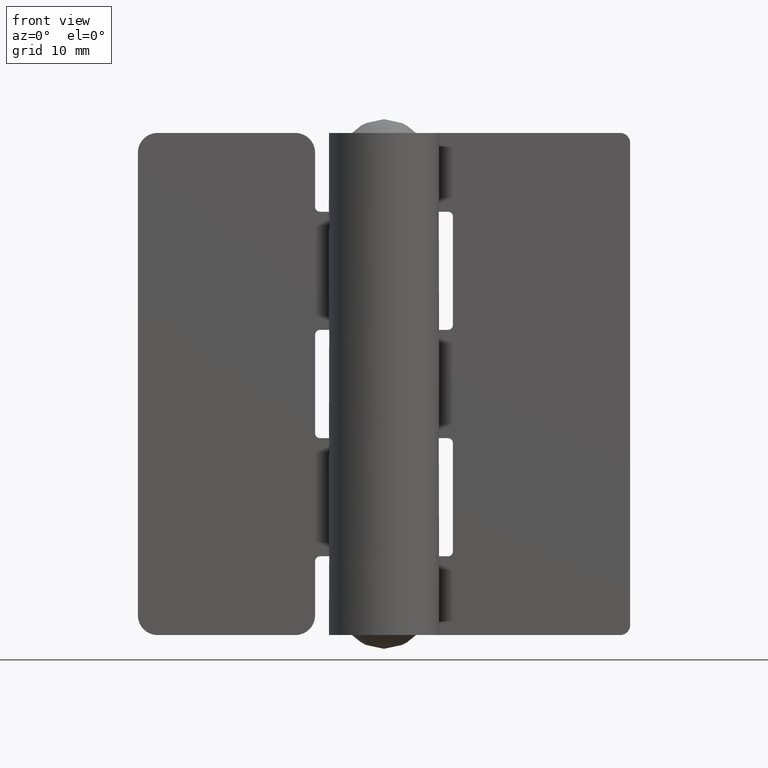
[diagram: clean part render]
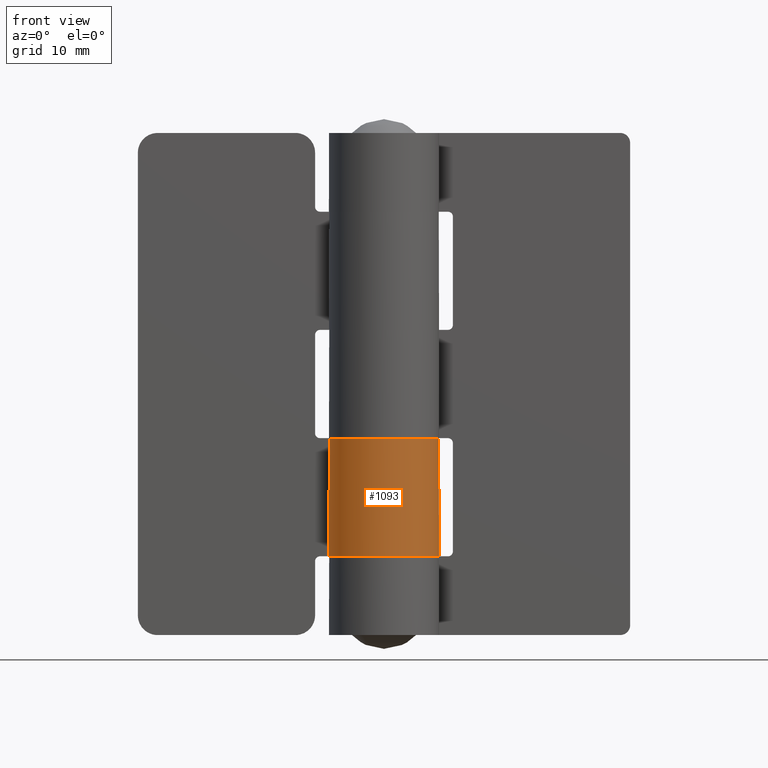
[diagram: same view with one face highlighted and labeled with its STEP entity id]
A machine part, front view. The second image highlights one B-rep face of the part: STEP entity #1093.
In plain terms, the highlighted face is a freeform B-spline surface patch.
Its self-contained STEP definition (entity closure, byte-faithful):
#621=CARTESIAN_POINT('',(0.0,5.599999000000000,20.0));
#622=VERTEX_POINT('',#621);
#673=CARTESIAN_POINT('',(-4.759988939062780,2.949999000000000,20.0));
#674=VERTEX_POINT('',#673);
#680=CARTESIAN_POINT('',(0.0,5.599999000000000,20.0));
#681=CARTESIAN_POINT('',(0.499312187584081,5.600187714743003,20.000000000000039));
#682=CARTESIAN_POINT('',(1.190524074569857,5.506891459092545,19.999999999999950));
#683=CARTESIAN_POINT('',(2.213064798772284,5.169290433948781,20.000000000000028));
#684=CARTESIAN_POINT('',(2.986308612983110,4.773354593073041,20.000000000000082));
#685=CARTESIAN_POINT('',(3.812252247942811,4.141212838566218,19.999999999999929));
#686=CARTESIAN_POINT('',(4.477715516237712,3.416284566733538,19.999999999999659));
#687=CARTESIAN_POINT('',(5.028430281743758,2.532925610768363,20.000000000000231));
#688=CARTESIAN_POINT('',(5.355370994579897,1.708227579224150,19.999999999999790));
#689=CARTESIAN_POINT('',(5.542508625627568,0.902616204627667,20.000000000000298));
#690=CARTESIAN_POINT('',(5.613406231213165,0.193802263884784,19.999999999999879));
#691=CARTESIAN_POINT('',(5.585254328605671,-0.633044039533733,20.000000000000060));
#692=CARTESIAN_POINT('',(5.437742217983351,-1.429124430176660,19.999999999999989));
#693=CARTESIAN_POINT('',(5.144541278378997,-2.264505494827621,20.000000000000011));
#694=CARTESIAN_POINT('',(4.748012313578252,-3.013875202631489,19.999999999999989));
#695=CARTESIAN_POINT('',(4.179749297071977,-3.767391968267427,20.000000000000021));
#696=CARTESIAN_POINT('',(3.519549779016520,-4.388483343310901,20.000000000000011));
#697=CARTESIAN_POINT('',(2.751772896021452,-4.902850156791495,20.0));
#698=CARTESIAN_POINT('',(1.843556974675394,-5.326044492209232,20.0));
#699=CARTESIAN_POINT('',(0.942606422901718,-5.547018566932548,20.000000000000011));
#700=CARTESIAN_POINT('',(-0.016084357869889,-5.619884786808844,19.999999999999979));
#701=CARTESIAN_POINT('',(-0.958907565857189,-5.555634690133299,20.000000000000210));
#702=CARTESIAN_POINT('',(-1.964514823616229,-5.278692566112881,19.999999999999488));
#703=CARTESIAN_POINT('',(-2.899275522052977,-4.822623513956224,20.000000000000188));
#704=CARTESIAN_POINT('',(-3.572445336681201,-4.338333525960937,19.999999999999471));
#705=CARTESIAN_POINT('',(-4.167371482082184,-3.764124564870689,19.999999999998231));
#706=CARTESIAN_POINT('',(-4.660565599487718,-3.147403679083924,20.000000000001620));
#707=CARTESIAN_POINT('',(-5.135190334802826,-2.308991537299744,19.999999999999151));
#708=CARTESIAN_POINT('',(-5.433378070341580,-1.452545310887703,20.000000000000298));
#709=CARTESIAN_POINT('',(-5.591330464500872,-0.562157907802589,19.999999999999918));
#710=CARTESIAN_POINT('',(-5.619964182569015,0.343020058249417,20.000000000000160));
#711=CARTESIAN_POINT('',(-5.497226103122476,1.163581297743021,19.999999999999869));
#712=CARTESIAN_POINT('',(-5.230319178178160,2.066736793268909,20.000000000000220));
#713=CARTESIAN_POINT('',(-4.982622227179238,2.590937044475142,19.999999999996870));
#714=CARTESIAN_POINT('',(-4.759988939062780,2.949999000000000,20.0));
#715=B_SPLINE_CURVE_WITH_KNOTS('',3,(#680,#681,#682,#683,#684,#685,#686,#687,#688,#689,#690,#691,#692,#693,#694,#695,#696,#697,#698,#699,#700,#701,#702,#703,#704,#705,#706,#707,#708,#709,#710,#711,#712,#713,#714),.UNSPECIFIED.,.F.,.U.,(4,1,1,1,1,1,1,1,1,1,1,1,1,1,1,1,1,1,1,1,1,1,1,1,1,1,1,1,1,1,1,1,4),(0.000000119759694,1.497862609559093,2.073965803868283,3.226175939003674,4.090332376966728,5.184933123235918,6.164303618623880,7.201315523144405,7.834988426872759,8.641519705231119,9.332850886344652,10.312239556603689,11.061175700837140,11.982940509869680,12.847100954309040,13.884081672732250,14.690636331765880,15.612379804215919,16.879812220815989,17.455915332829878,18.492902454113409,19.702730064500379,20.566888571862432,21.603861550418451,22.179946664737429,23.044103251506851,23.965864166468709,25.060465247798891,25.751795981026490,26.673561321542319,27.768175390792941,28.229043012991550,29.496464256141781),.UNSPECIFIED.);
#716=EDGE_CURVE('',#622,#674,#715,.T.);
#877=CARTESIAN_POINT('',(0.0,5.599999000000000,8.0));
#878=VERTEX_POINT('',#877);
#884=CARTESIAN_POINT('',(-4.759988939062780,2.949999000000000,8.0));
#885=VERTEX_POINT('',#884);
#886=CARTESIAN_POINT('',(-4.759988939062780,2.949999000000000,8.0));
#887=CARTESIAN_POINT('',(-4.972492123320230,2.607254389446145,8.000000000000011));
#888=CARTESIAN_POINT('',(-5.272823761338738,1.980105288297291,7.999999999999973));
#889=CARTESIAN_POINT('',(-5.506952344828874,1.105660027159584,8.000000000000014));
#890=CARTESIAN_POINT('',(-5.612439097374665,0.285343585623478,8.000000000000027));
#891=CARTESIAN_POINT('',(-5.598765265818063,-0.562729889637604,7.999999999999942));
#892=CARTESIAN_POINT('',(-5.420699495899317,-1.509564062778875,8.000000000000053));
#893=CARTESIAN_POINT('',(-5.118657711847159,-2.322747564638697,7.999999999999973));
#894=CARTESIAN_POINT('',(-4.681316190961790,-3.114246538638991,7.999999999999976));
#895=CARTESIAN_POINT('',(-4.149835871499414,-3.800314203432685,8.000000000000080));
#896=CARTESIAN_POINT('',(-3.496716745426211,-4.398971078907762,7.999999999999995));
#897=CARTESIAN_POINT('',(-2.860427827731439,-4.832326496052886,8.000000000000043));
#898=CARTESIAN_POINT('',(-2.174043619595116,-5.180401883227240,7.999999999999953));
#899=CARTESIAN_POINT('',(-1.299559675272061,-5.480431096290932,8.000000000000139));
#900=CARTESIAN_POINT('',(-0.305725772455670,-5.625839288811138,7.999999999999940));
#901=CARTESIAN_POINT('',(0.637484651931337,-5.583240550922773,8.000000000000005));
#902=CARTESIAN_POINT('',(1.450066684157052,-5.427744008846545,8.000000000000002));
#903=CARTESIAN_POINT('',(2.234123247496936,-5.160985017932416,8.0));
#904=CARTESIAN_POINT('',(2.983187257866678,-4.763914216806866,8.0));
#905=CARTESIAN_POINT('',(3.710593168037769,-4.226200837683432,8.0));
#906=CARTESIAN_POINT('',(4.317702321619465,-3.606039202340385,8.0));
#907=CARTESIAN_POINT('',(4.814113640318336,-2.895949208120165,8.000000000000004));
#908=CARTESIAN_POINT('',(5.242371435150837,-2.055702397897208,7.999999999999977));
#909=CARTESIAN_POINT('',(5.497633704414552,-1.204127962644750,8.000000000000069));
#910=CARTESIAN_POINT('',(5.616474539636037,-0.230388965581934,7.999999999999869));
#911=CARTESIAN_POINT('',(5.590390057758932,0.714244568829204,8.000000000000020));
#912=CARTESIAN_POINT('',(5.363934888259358,1.712033672668250,8.000000000000014));
#913=CARTESIAN_POINT('',(4.933245706735271,2.721884265711610,7.999999999999974));
#914=CARTESIAN_POINT('',(4.327992661523887,3.619109013689253,8.000000000000014));
#915=CARTESIAN_POINT('',(3.563431100330595,4.355110809989276,7.999999999999993));
#916=CARTESIAN_POINT('',(2.878566503072945,4.820265370112688,8.000000000000021));
#917=CARTESIAN_POINT('',(2.176827456486782,5.179596222923674,7.999999999999916));
#918=CARTESIAN_POINT('',(1.248157812905440,5.502226871207489,8.000000000000242));
#919=CARTESIAN_POINT('',(0.460884508474857,5.600126549196624,7.999999999999833));
#920=CARTESIAN_POINT('',(0.0,5.599999000000000,8.0));
#921=B_SPLINE_CURVE_WITH_KNOTS('',3,(#886,#887,#888,#889,#890,#891,#892,#893,#894,#895,#896,#897,#898,#899,#900,#901,#902,#903,#904,#905,#906,#907,#908,#909,#910,#911,#912,#913,#914,#915,#916,#917,#918,#919,#920),.UNSPECIFIED.,.F.,.U.,(4,1,1,1,1,1,1,1,1,1,1,1,1,1,1,1,1,1,1,1,1,1,1,1,1,1,1,1,1,1,1,1,4),(0.000000119753281,1.209813331748350,2.073965803862947,2.707679854001437,3.687059296713187,4.608827415401720,5.588212093036432,6.279544009641828,7.316520333288530,8.180657203051034,8.929575417891734,9.620904982125030,10.485067370652679,11.694889269342230,12.616662033907311,13.307997068106440,14.172154291584519,15.093872656397259,15.842808153371740,16.879812220815069,17.686352539166009,18.435291486558789,19.702730064499750,20.336449026034121,21.373441979267191,22.525604354446031,23.389770136612839,24.657199786274521,25.751795981026170,26.558347901045320,27.134456751429990,28.113839291865201,29.496464256141810),.UNSPECIFIED.);
#922=EDGE_CURVE('',#885,#878,#921,.T.);
#1050=CARTESIAN_POINT('',(-4.759988939062780,2.949999000000000,20.0));
#1051=CARTESIAN_POINT('',(-4.759988939062780,2.949999000000000,8.0));
#1052=QUASI_UNIFORM_CURVE('',1,(#1050,#1051),.UNSPECIFIED.,.F.,.U.);
#1053=EDGE_CURVE('',#674,#885,#1052,.T.);
#1061=CARTESIAN_POINT('',(-4.669759769690318,3.090846565810540,20.300000000000001));
#1062=CARTESIAN_POINT('',(-4.669759769690318,3.090846565810540,7.692499999999999));
#1063=CARTESIAN_POINT('',(-8.532370044657423,-2.744920976828291,20.300000000000011));
#1064=CARTESIAN_POINT('',(-8.532370044657423,-2.744920976828291,7.692499999999999));
#1065=CARTESIAN_POINT('',(-1.991643910512547,-5.233865047335407,20.300000000000001));
#1066=CARTESIAN_POINT('',(-1.991643910512547,-5.233865047335407,7.692499999999999));
#1067=CARTESIAN_POINT('',(4.549082223632328,-7.722809117842525,20.300000000000011));
#1068=CARTESIAN_POINT('',(4.549082223632328,-7.722809117842525,7.692499999999999));
#1069=CARTESIAN_POINT('',(5.543209642829131,-0.795497112280814,20.300000000000001));
#1070=CARTESIAN_POINT('',(5.543209642829131,-0.795497112280814,7.692499999999999));
#1071=CARTESIAN_POINT('',(6.537337062025936,6.131814893280898,20.300000000000011));
#1072=CARTESIAN_POINT('',(6.537337062025936,6.131814893280898,7.692499999999999));
#1073=CARTESIAN_POINT('',(-0.439370857616833,5.582736071988181,20.300000000000001));
#1074=CARTESIAN_POINT('',(-0.439370857616833,5.582736071988181,7.692499999999999));
#1082=(BOUNDED_SURFACE()B_SPLINE_SURFACE(1,2,((#1061,#1063,#1065,#1067,#1069,#1071,#1073),(#1062,#1064,#1066,#1068,#1070,#1072,#1074)),.UNSPECIFIED.,.F.,.F.,.U.)B_SPLINE_SURFACE_WITH_KNOTS((2,2),(3,2,2,3),(0.0,12.607500000000011),(0.0,10.764344354865180,21.528688709730350,32.293033064595527),.UNSPECIFIED.)GEOMETRIC_REPRESENTATION_ITEM()RATIONAL_B_SPLINE_SURFACE(((1.0,0.624788514543960,1.0,0.624788514543960,1.0,0.624788514543960,1.0),(1.0,0.624788514543960,1.0,0.624788514543960,1.0,0.624788514543960,1.0)))REPRESENTATION_ITEM('')SURFACE());
#1083=ORIENTED_EDGE('',*,*,#716,.T.);
#1084=ORIENTED_EDGE('',*,*,#1053,.T.);
#1085=ORIENTED_EDGE('',*,*,#922,.T.);
#1086=CARTESIAN_POINT('',(0.0,5.599999000000000,20.0));
#1087=CARTESIAN_POINT('',(0.0,5.599999000000000,8.0));
#1088=QUASI_UNIFORM_CURVE('',1,(#1086,#1087),.UNSPECIFIED.,.F.,.U.);
#1089=EDGE_CURVE('',#622,#878,#1088,.T.);
#1090=ORIENTED_EDGE('',*,*,#1089,.F.);
#1091=EDGE_LOOP('',(#1083,#1084,#1085,#1090));
#1092=FACE_OUTER_BOUND('',#1091,.T.);
#1093=ADVANCED_FACE('',(#1092),#1082,.T.);